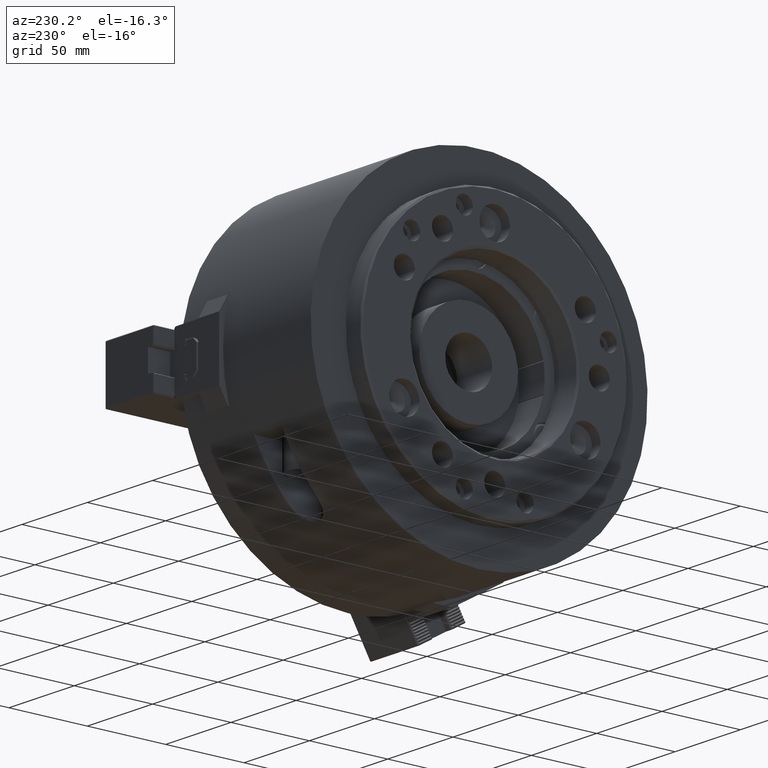
[diagram: clean part render]
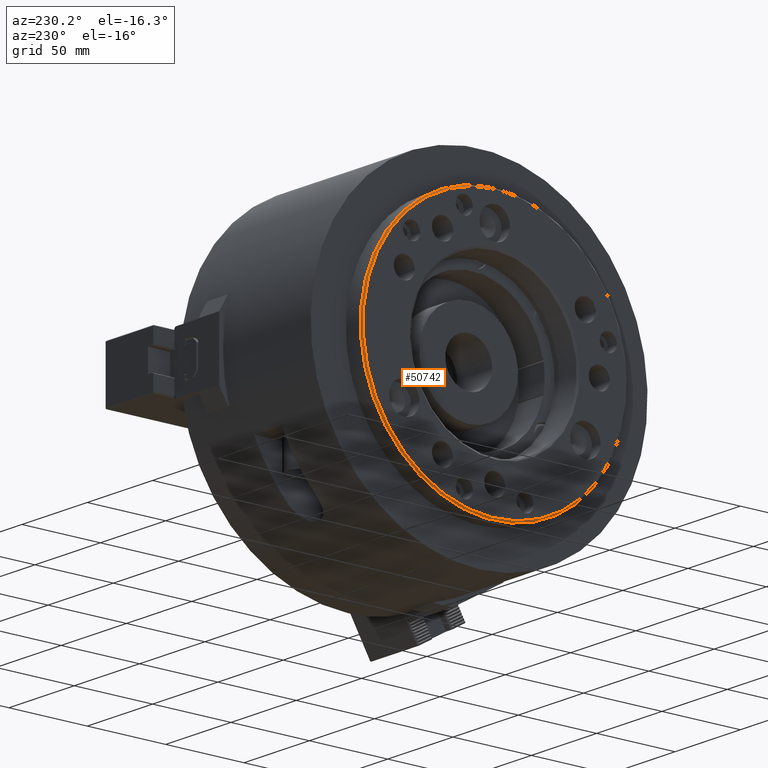
[diagram: same view with one face highlighted and labeled with its STEP entity id]
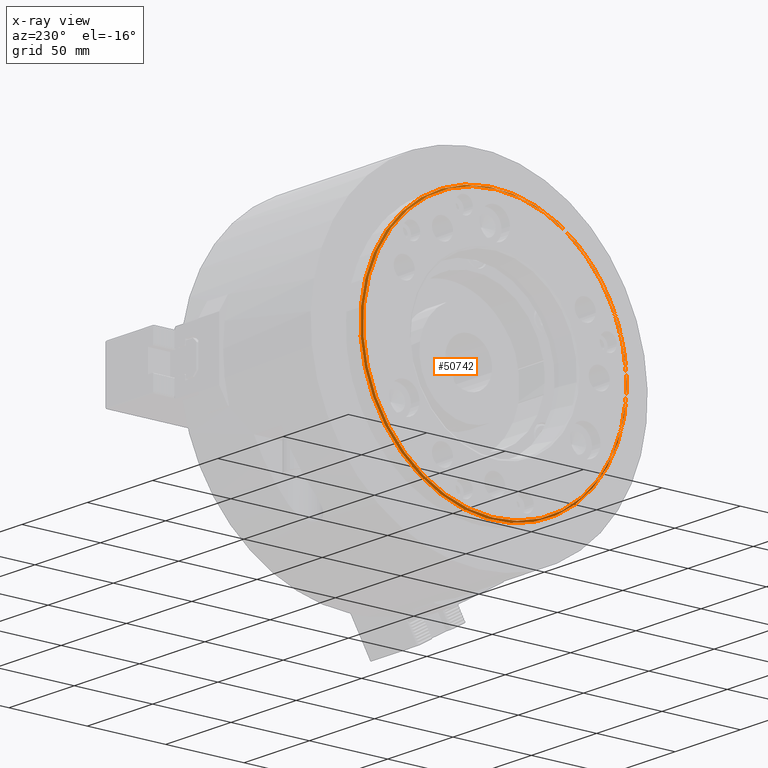
[diagram: x-ray of the same camera — body ghosted, the highlighted face saturated]
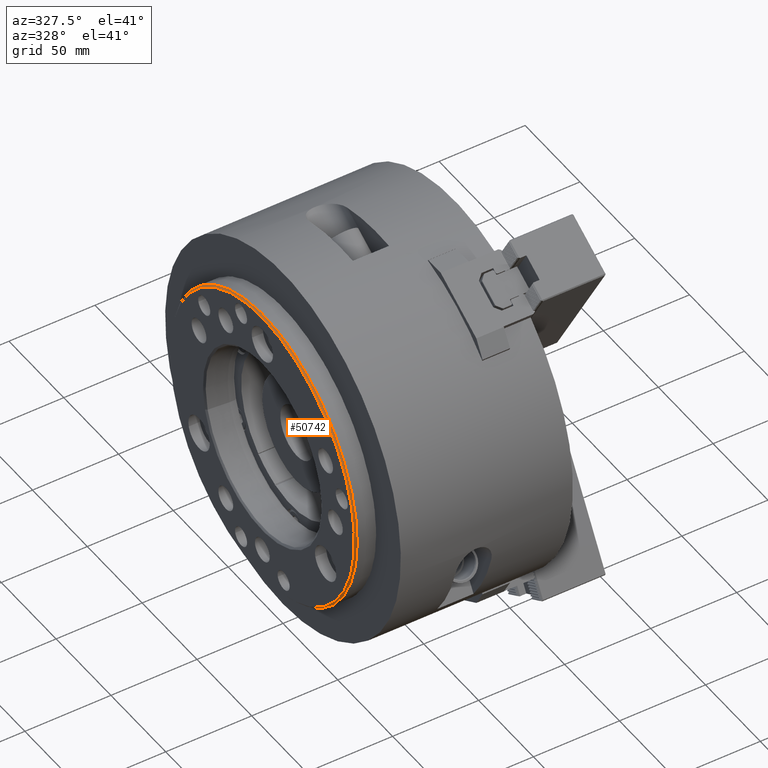
[diagram: same view with one face highlighted and labeled with its STEP entity id]
A machine part, auxiliary view. The second image highlights one B-rep face of the part: STEP entity #50742.
The next image is the same camera in x-ray: the body ghosted, the highlighted face saturated — about 0% of this face is hidden behind the body in this view.
A second angle (auxiliary view) of the same face is appended — the face is thin or edge-on in the first view.
In plain terms, the highlighted conical surface has half-angle 45 deg.
Its self-contained STEP definition (entity closure, byte-faithful):
#15849=ORIENTED_EDGE('',*,*,#30607,.F.);
#15850=ORIENTED_EDGE('',*,*,#30606,.T.);
#30606=EDGE_CURVE('',#42159,#42159,#38001,.T.);
#30607=EDGE_CURVE('',#42160,#42160,#38002,.T.);
#38001=CIRCLE('',#54001,85.);
#38002=CIRCLE('',#54003,84.);
#38876=EDGE_LOOP('',(#15849));
#38877=EDGE_LOOP('',(#15850));
#42159=VERTEX_POINT('',#71652);
#42160=VERTEX_POINT('',#71655);
#47308=FACE_BOUND('',#38876,.T.);
#47309=FACE_BOUND('',#38877,.T.);
#50587=CONICAL_SURFACE('',#54002,84.,0.785398163397449);
#50742=ADVANCED_FACE('',(#47308,#47309),#50587,.T.);
#54001=AXIS2_PLACEMENT_3D('',#71651,#57785,#57786);
#54002=AXIS2_PLACEMENT_3D('',#71653,#57787,#57788);
#54003=AXIS2_PLACEMENT_3D('',#71654,#57789,#57790);
#57785=DIRECTION('',(-1.,0.,0.));
#57786=DIRECTION('',(0.,0.965925826289065,-0.258819045102534));
#57787=DIRECTION('',(1.,0.,0.));
#57788=DIRECTION('',(0.,-0.965925826289065,0.258819045102534));
#57789=DIRECTION('',(-1.,0.,0.));
#57790=DIRECTION('',(0.,0.965925826289065,-0.258819045102534));
#71651=CARTESIAN_POINT('',(-111.,1.78647059178206E-29,4.33680868994202E-14));
#71652=CARTESIAN_POINT('',(-111.,82.1036952345705,-21.9996188337153));
#71653=CARTESIAN_POINT('',(-112.,1.78647059178206E-29,4.33680868994202E-14));
#71654=CARTESIAN_POINT('',(-112.,1.78647059178206E-29,4.33680868994202E-14));
#71655=CARTESIAN_POINT('',(-112.,81.1377694082814,-21.7407997886128));